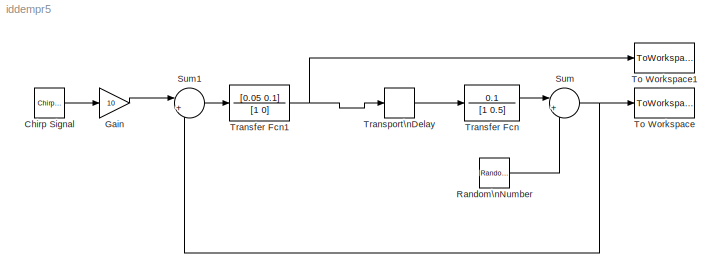
MODEL iddempr5
KIND model
CONFIG AbsTol = auto
CONFIG FixedStep = auto
CONFIG MaxStep = auto
CONFIG MinStep = auto
CONFIG RelTol = 1e-3
CONFIG Solver = ode45
CONFIG SolverMode = Auto
CONFIG StartTime = 0.0
CONFIG StopTime = 500
BLOCK [Reference] Chirp Signal  REF=simulink3/Sources/Chirp Signal
  Ports = [0, 1]
  SourceBlock = simulink3/Sources/Chirp Signal
  SourceType = chirp
  T = 500
  VectorParams1D = on
  f1 = 0.001
  f2 = 0.2
BLOCK [Gain] Gain
  Gain = 10
  Multiplication = Element-wise(K.*u)
  SaturateOnIntegerOverflow = on
BLOCK [RandomNumber] Random\nNumber
  Mean = 0
  SampleTime = 0.5
  Seed = 0
  Variance = 0.01
  VectorParams1D = on
BLOCK [Sum] Sum
  IconShape = round
  Inputs = |++
  Ports = [2, 1]
  SaturateOnIntegerOverflow = on
BLOCK [Sum] Sum1
  IconShape = round
  Inputs = |+-
  Ports = [2, 1]
  SaturateOnIntegerOverflow = on
BLOCK [ToWorkspace] To Workspace
  Decimation = 1
  MaxDataPoints = inf
  SampleTime = 0.5
  SaveFormat = Array
  VariableName = y
BLOCK [ToWorkspace] To Workspace1
  Decimation = 1
  MaxDataPoints = inf
  SampleTime = 0.5
  SaveFormat = Array
  VariableName = u
BLOCK [TransferFcn] Transfer Fcn
  AbsoluteTolerance = auto
  Denominator = [1 0.5]
  Numerator = 0.1
  Realization = auto
BLOCK [TransferFcn] Transfer Fcn1
  AbsoluteTolerance = auto
  Denominator = [1 0]
  Numerator = [0.05 0.1]
  Realization = auto
BLOCK [TransportDelay] Transport\nDelay
  BufferSize = 1024
  DelayTime = 1.57
  InitialInput = 0
  PadeOrder = 0
LINE Chirp Signal:1 -> Gain:1
LINE Gain:1 -> Sum1:1
LINE Random\nNumber:1 -> Sum:2
LINE Sum1:1 -> Transfer Fcn1:1
NET Sum:1 -> Sum1:2, To Workspace:1
NET Transfer Fcn1:1 -> To Workspace1:1, Transport\nDelay:1
LINE Transfer Fcn:1 -> Sum:1
LINE Transport\nDelay:1 -> Transfer Fcn:1
note: NET lines group one-source signal fan-out (src -> all destinations, sorted); 1:1 wires keep LINE
